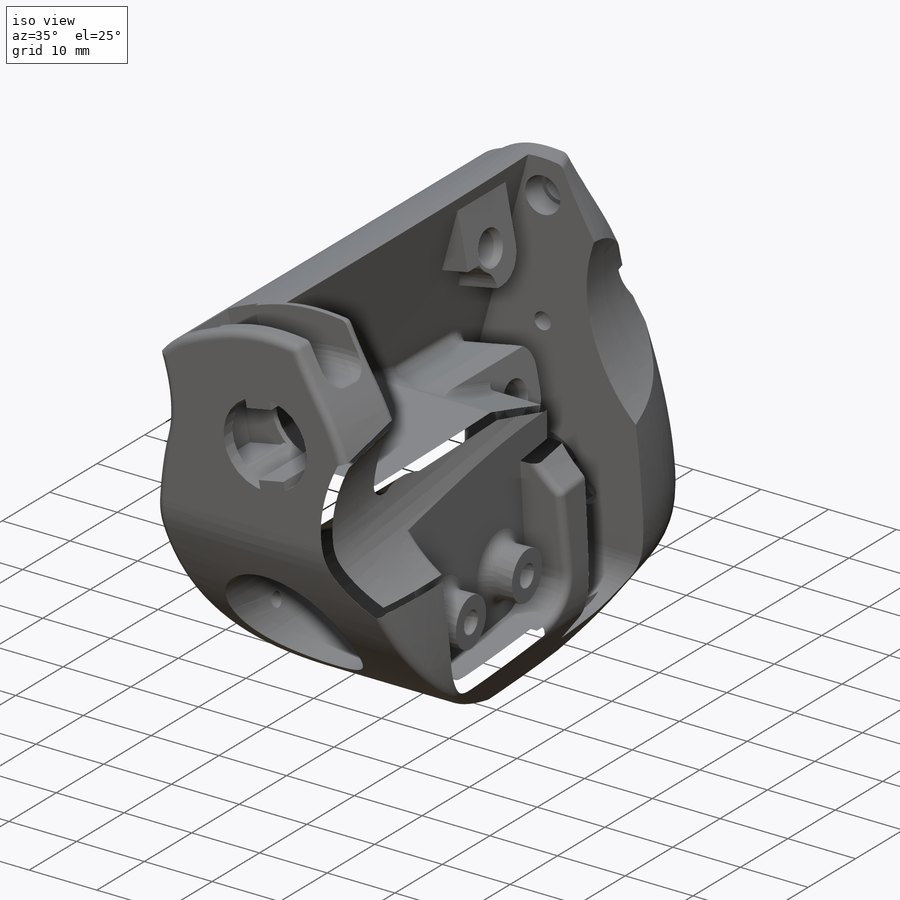
[diagram: iso view]
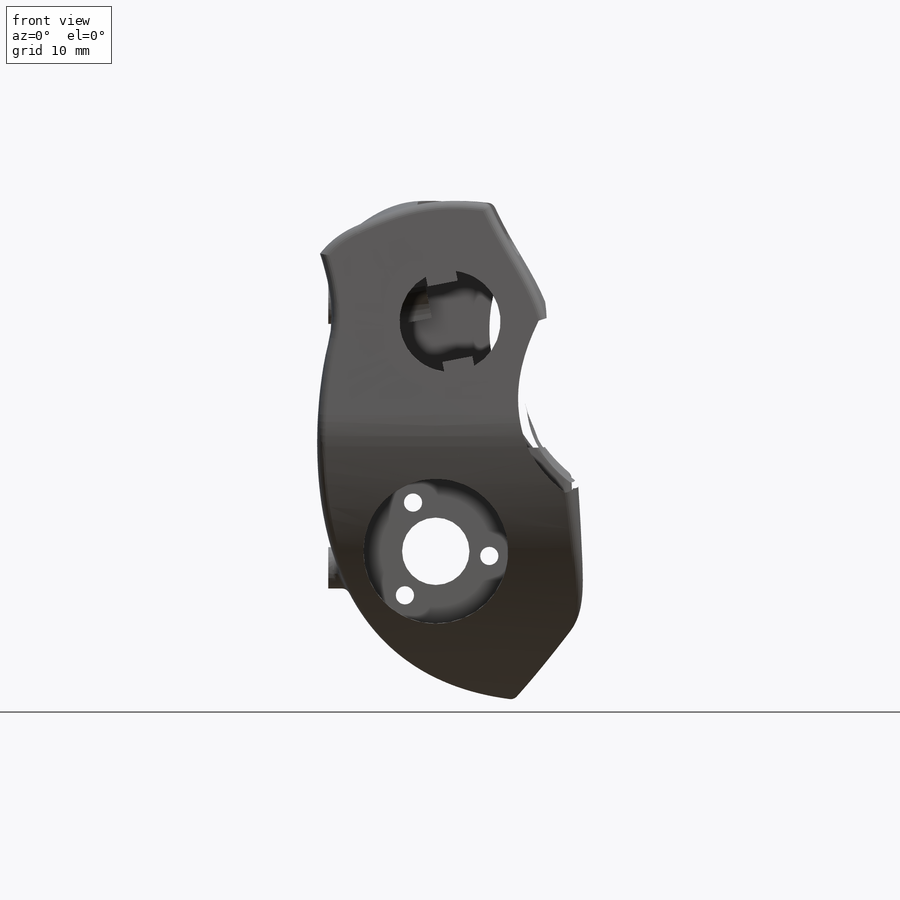
[diagram: front view]
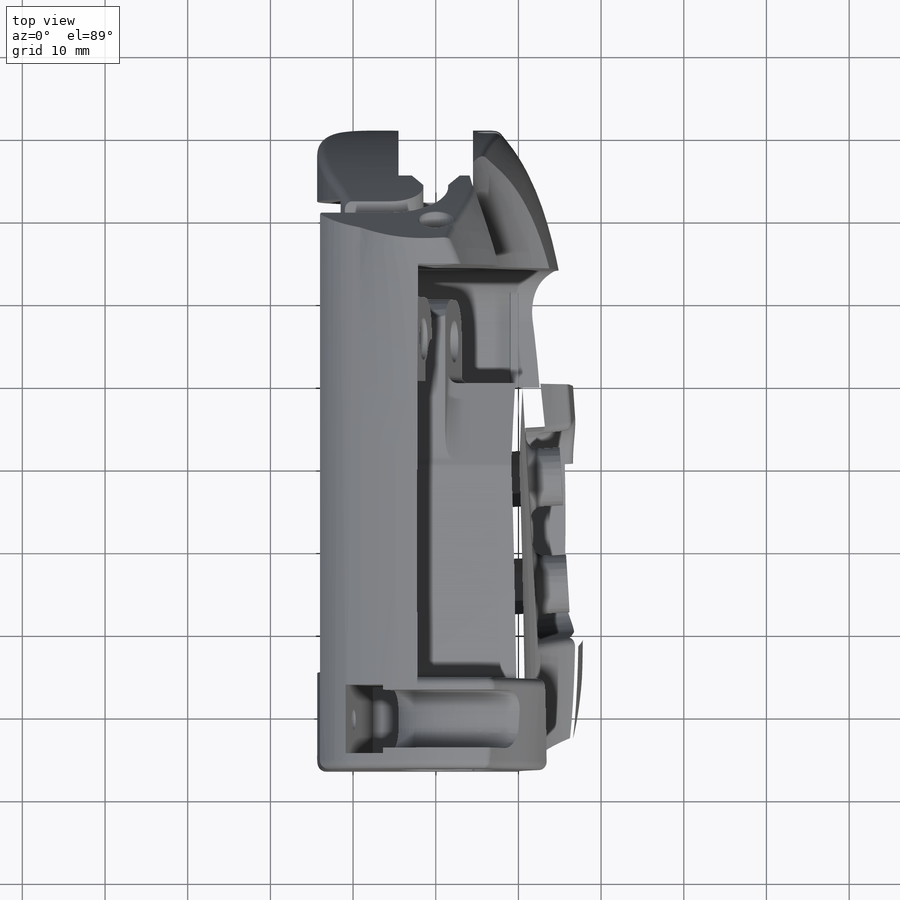
[diagram: top view]
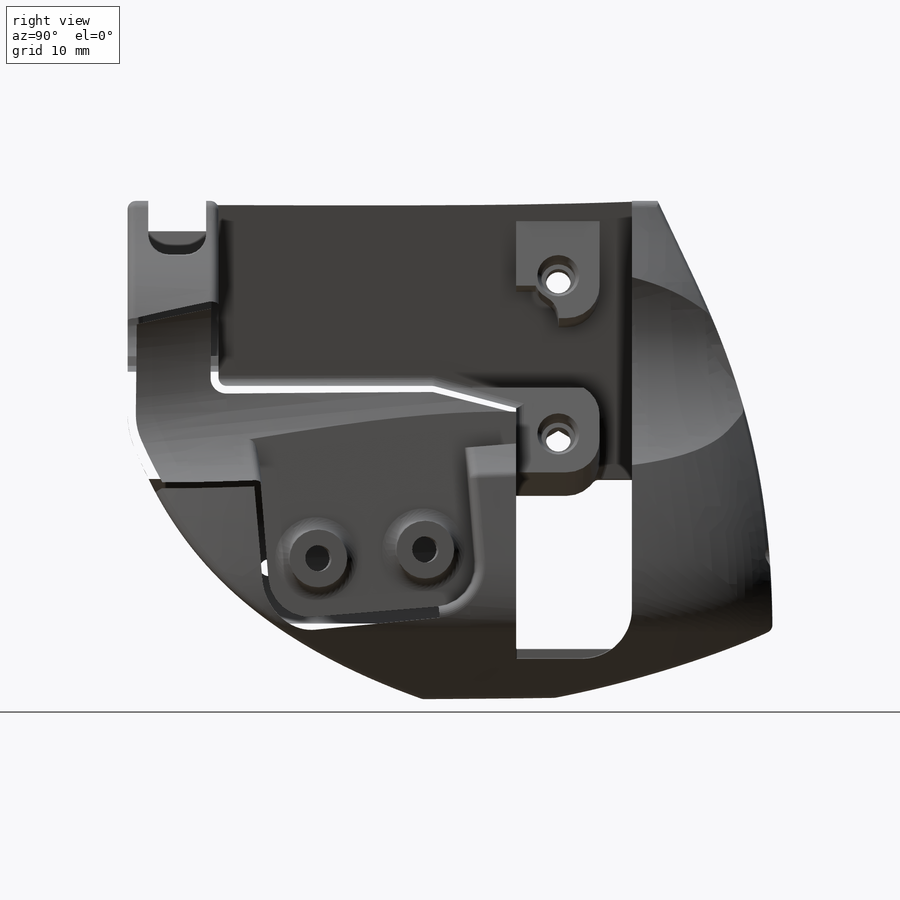
[diagram: right view]
SOLIDWORKS PART (.sldprt)
format: sldprt  version: not decoded by parser v0  size: 5,524,992 bytes
history: native  units: mm
features: sketch x56, cut_extrude x23, plane x21, chamfer x21, extrude x9, cut_revolve x5, fillet x4, delete_body x2, material x1, surface_op x1, pattern_circular x1, hole x1, move_body x1 + 2 further entries (+9 scaffold rows collapsed; 1 parser-record rows omitted)
feature tree (158):
  scaffold x9  (default folders/planes/origin — collapsed)
  material  "Material <nicht festgelegt>"
  plane  "Vorne"
  plane  "Oben"
  plane  "Rechts"
  sketch  "Skizze1"  dims[D1=33.0mm D2=15.0mm]
  extrude  "Aufsatz-Linear austragen1"  Depth=8mm
  sketch  "Skizze2"  dims[D1=13.0mm]
  plane  "Ebene1"  Offset=14mm
  sketch  "Skizze3"  dims[c1.D1=12.5mm c1.D2=~7.550646mm c1.D3=8.0mm c2.D2=8.0mm c2.D3=1.1mm c2.D4=6.0mm c2.D5=20.0mm]
  plane  "Ebene2"  Offset=36mm
  sketch  "Skizze4"  dims[c1.D3=22.0mm c1.D4=12.2mm c1.D1=1.7mm c1.D2=27.8mm c2.D3=1.7mm c2.D5=1.7mm c3.D5=~10.511736deg c3.D6=4.2mm c3.D7=2.5mm c3.D8=3.1mm c3.D9=5.3mm c3.D10=12.0mm]
  plane  "Ebene3"  Offset=5.1mm
  sketch  "Skizze6"  dims[c1.D1=~36.674242mm c2.D1=~78.996459deg c2.D2=~6.871308mm c3.D2=90.0deg c3.D3=36.0mm c3.D4=4.0mm c3.D5=5.0mm c3.D6=1.0mm c3.D7=26.0mm c3.D8=2.0mm c3.D9=5.0mm]
  sketch  "Skizze11"  dims[c1.D1=7.0mm c1.D2=3.5mm c1.D3=14.0mm c1.D4=5.5mm c2.D3=43.0mm c2.D4=42.0mm c2.D5=~58.694122mm c3.D4=42.0mm c3.D5=28.0mm c3.D6=8.0mm c3.D7=28.0mm c4.D6=30.0mm c4.D7=10.0mm c4.D8=8.0mm c4.D9=19.0mm c4.D10=20.1mm c4.D11=~33.729395mm]
  sketch  "Skizze10"  dims[D1=18.0mm D2=17.0mm D3=46.0mm D4=17.0mm]
  sketch  "Skizze12"  dims[c1.D1=~71.391078mm c2.D1=15.0deg c2.D2=11.5mm c2.D3=41.0mm c2.D4=3.0mm c2.D5=42.0mm c3.D2=20.0mm c3.D3=1.0mm c4.D2=20.0mm c4.D3=1.0mm]
  extrude  "Aufsatz-Linear austragen7"  Depth=46mm
  plane  "Ebene4"  Offset=28mm
  sketch  "Skizze14"  dims[D1=12.0mm D2=14.0mm D3=46.0mm]
  sketch  "Skizze15"  dims[c1.D3=~21.268999mm c1.D4=~9.231116mm c1.D1=6.0mm c1.D2=42.0mm c2.D3=10.0mm c2.D4=15.0mm]
  sketch  "Skizze16"
  surface_op  "Oberfläche-Linear austragen1"
  sketch  "Skizze15<12>"
  sketch  "Skizze17"  dims[c1.D1=22.0mm c2.D1=40.0mm c2.D2=50.0mm]
  sketch  "Skizze18"  dims[D1=19.0mm D2=3.0deg]
  plane  "Ebene5"  Offset=45mm
  sketch  "Skizze19"  dims[c1.D1=4.5mm c1.D2=9.0mm c1.D3=22.0mm c1.D4=12.0mm c2.D1=25.0mm c2.D2=20.0mm]
  plane  "Ebene6"  Offset=8mm
  sketch  "Skizze20"  dims[D1=17.5mm]
  "Oberflächenausfüllung2"
  "Oberflächenausfüllung3"
  delete_body  "Körper-Löschen2"
  sketch  "Skizze21"  dims[c1.D2=13.0mm c1.D1=~71.36895mm c2.D1=15.0deg c2.D3=15.0mm c2.D4=~71.36895mm c3.D4=10.6deg c3.D5=2.0mm c3.D6=60.0mm c3.D7=20.0mm c4.D4=32.0mm]
  cut_extrude  "Schnitt-Linear austragen1"  [1 undecoded]
  sketch  "Skizze23"  dims[c1.D1=20.0mm c1.D2=~32.879159mm c2.D2=~2.210351deg c3.D2=30.0mm c3.D3=30.0mm c3.D4=30.0mm]
  cut_extrude  "Schnitt-Linear austragen2"  [1 undecoded]
  sketch  "Skizze24"  dims[c1.D1=2.5mm c1.D2=2.2mm c1.D3=15.1mm c1.D4=12.5mm c1.D5=10.0mm c1.D6=8.15mm c2.D1=9.5mm c2.D3=10.5mm c2.D7=2.0mm]
  cut_revolve  "Schnitt-Rotation1"  Angle=360deg
  sketch  "Skizze25"  dims[c1.D1=12.25mm c1.D7=12.1mm c1.D2=1.72mm c1.D3=27.8mm c1.D4=27.8mm c2.D4=11.0deg c2.D5=4.6mm c2.D6=3.7mm c2.D7=12.1mm c3.D5=9.3mm c3.D2=1.72mm]
  delete_body  "Schnitt-Linear austragen3"
  sketch  "Skizze26"  dims[c1.D1=~71.36895mm c2.D1=11.0deg c2.D2=5.0mm c2.D3=10.0mm c2.D4=11.0mm c3.D3=11.0mm c3.D4=11.0mm c3.D5=8.0mm c4.D3=28.2mm]
  extrude  "Aufsatz-Linear austragen8"  Depth=5mm
  chamfer  "Fase3"  Distance=3mm Angle=11deg
  fillet  "Verrundung1"  Radius=4mm
  sketch  "Skizze27"  dims[D1=8.0mm D2=17.0mm D3=9.0mm]
  cut_extrude  "Schnitt-Linear austragen4"  Depth=4.5mm
  sketch  "Skizze28"  dims[D2=2.46mm D1=20.63mm]
  cut_extrude  "Schnitt-Linear austragen5"  [1 undecoded]
  sketch  "Skizze29"  dims[D1=3.0mm D2=19.5mm D3=33.0mm]
  cut_extrude  "Schnitt-Linear austragen6"  [1 undecoded]
  sketch  "Skizze30"  dims[c1.D1=14.0mm c1.D2=36.0mm c1.D3=24.0mm c2.D1=14.0mm c2.D2=36.0mm c2.D3=25.0mm]
  extrude  "Aufsatz-Linear austragen9"  Depth=9mm
  plane  "Ebene7"  Offset=4mm
  sketch  "Skizze33"  dims[c1.D1=~71.36895mm c2.D1=11.0deg c2.D2=4.0mm c2.D3=5.6mm c2.D4=4.8mm c2.D5=4.1mm c2.D6=20.0mm c3.D3=10.3mm]
  cut_extrude  "Schnitt-Linear austragen7"  Depth=8.3mm
  chamfer  "Verrundung2"  Distance=0.5mm
  sketch  "Skizze34"  dims[D1=8.0mm D2=3.5mm D3=35.0mm D4=20.0mm D5=8.0mm]
  cut_extrude  "Schnitt-Linear austragen8"  Depth=7mm
  chamfer  "Verrundung3"  Distance=2.5mm
  sketch  "Skizze36"  dims[D2=2.46mm D1=12.1mm]
  cut_extrude  "Schnitt-Linear austragen9"  [1 undecoded]
  sketch  "Skizze37"  dims[D1=21.0mm]
  cut_extrude  "Schnitt-Linear austragen10"  [1 undecoded]
  sketch  "Skizze40"  dims[D1=4.15mm]
  cut_extrude  "Schnitt-Linear austragen12"  Depth=3.5mm
  plane  "Ebene8"  Offset=2mm
  sketch  "Skizze41"  dims[D1=5.2mm D2=5.2mm]
  cut_extrude  "Schnitt-Linear austragen13"  [1 undecoded]
  fillet  "Fläche verschieben5"  Radius=0.5mm
  fillet  "Fläche verschieben6"  Radius=2mm
  fillet  "Fläche verschieben7"  Radius=1mm
  sketch  "Skizze50"  dims[D1=5.0mm]
  extrude  "Aufsatz-Linear austragen11"  [1 undecoded]
  sketch  "Skizze38"  dims[D1=37.4mm D2=4.0mm D3=5.2mm D4=3.5mm D5=7.0mm]
  cut_extrude  "Schnitt-Rotation2"  [1 undecoded]
  chamfer  "Verrundung4"  Distance=0.2mm
  chamfer  "Verrundung6"  Distance=15mm
  chamfer  "Verrundung7"  Distance=10mm
  chamfer  "Verrundung9"  Distance=1mm
  chamfer  "Verrundung11"  Distance=6mm
  chamfer  "Verrundung12"  Distance=1mm
  sketch  "Skizze42"  dims[D3=4.0mm D1=3.0mm D2=8.0mm D4=15.0mm]
  cut_extrude  "Schnitt-Linear austragen14"  [1 undecoded]
  chamfer  "Verrundung13"  Distance=1mm
  sketch  "Skizze43"  dims[c1.D1=13.0mm c1.D3=2.2mm c1.D2=~52.272938mm c2.D2=5.0deg]
  cut_extrude  "Schnitt-Linear austragen15"  [1 undecoded]
  cut_revolve  "Fase2"  Angle=45deg
  pattern_circular  "Kreismuster2"  Count=3 Angle=360deg
  sketch  "Skizze44"  dims[D1=20.0mm D2=1.5mm]
  cut_extrude  "Schnitt-Linear austragen16"  [1 undecoded]
  sketch  "Skizze45"  dims[D1=3.0mm D2=3.0mm D3=4.0mm]
  cut_extrude  "Schnitt-Linear austragen17"  [1 undecoded]
  chamfer  "Verrundung14"  Distance=5mm
  chamfer  "Verrundung18"  Distance=1mm
  plane  "Ebene9"  Offset=10mm
  sketch  "Skizze51"  dims[D1=1.2mm]
  extrude  "Aufsatz-Linear austragen12"  Depth=1mm
  chamfer  "Verrundung19"  Distance=0.1mm
  sketch  "Skizze52"  dims[D1=18.0mm D2=10.0mm]
  cut_extrude  "Schnitt-Linear austragen18"  [1 undecoded]
  plane  "Ebene10"  Offset=21.5mm
  sketch  "Skizze46"  dims[c1.D1=2.0mm c1.D2=2.0mm c2.D1=5.0mm c2.D3=~27.364699mm c2.D4=47.0mm c2.D2=47.0mm c3.D3=32.0mm c3.D4=30.0mm c3.D5=30.0mm]
  sketch  "Skizze56"  dims[c1.D1=47.0mm c2.D1=270.0deg c3.D1=42.0mm c3.D2=57.0mm c3.D3=5.0mm c3.D4=5.0mm]
  cut_extrude  "Schnitt-Linear austragen20"  [1 undecoded]
  cut_revolve  "Fase4"  Angle=15deg
  chamfer  "Verrundung22"  Distance=0.2mm
  chamfer  "Verrundung23"  Distance=1mm
  extrude  "Aufsatz-Linear austragen15"  Depth=1.5mm
  extrude  "Aufsatz-Linear austragen16"  [1 undecoded]
  sketch  "Skizze46<6>"  dims[D1=1.5mm]
  chamfer  "Verrundung28"  Distance=1mm
  hole  "Ø2.05 (2.05) Durchmesser Bohrung1"  Diameter=2.013mm Depth=5mm
  sketch  "Skizze60"
  sketch  "Skizze59"  dims[hole-wizard template sketch: 46 standard entries collapsed; hole parameters kept: c15.Bohrerdurchmesser=2.013mm c15.Bohrungstiefe=5.0mm c15.D3=~14.816244mm c15.Spitzenwinkel=118.0deg]
  plane  "Ebene11"  Offset=10mm
  plane  "Ebene12"  Offset=32mm
  sketch  "Skizze62"  dims[c1.D3=39.0mm c1.D1=23.0mm c1.D2=18.0mm c2.D1=35.0mm c2.D2=~52.272938mm c3.D2=50.0deg]
  sketch  "Skizze61"  dims[D1=30.5mm D2=27.5mm D3=20.0mm]
  sketch  "3D-Skizze1"  dims[D1=38.5mm]
  plane  "Ebene15"  Offset=2.5mm
  plane  "Ebene16"
  sketch  "Skizze67"  dims[D1=14.0mm D2=1.0mm D3=30.0mm D4=15.0mm]
  cut_extrude  "Schnitt-Linear austragen22"  Depth=25mm
  chamfer  "Verrundung29"  Distance=5mm
  plane  "Ebene17"
  plane  "Ebene18"
  sketch  "Skizze68"  dims[c1.D1=11.0mm c1.D2=~11.832207mm c2.D2=20.0deg c2.D3=10.0mm c2.D4=17.0mm c2.D1=~14.866069mm c3.D1=40.0deg c3.D3=15.5mm c3.D5=17.0mm c3.D6=~17.386665mm c4.D6=60.0deg]
  sketch  "Skizze69"  dims[c1.D1=~7.771096mm c2.D1=35.0deg c2.D2=20.0mm c2.D3=~7.771096mm c3.D3=20.0deg c3.D4=21.0mm c3.D5=~7.771096mm c4.D5=70.0deg c4.D6=21.0mm]
  plane  "Ebene20"
  sketch  "3D-Skizze2"
  chamfer  "Verrundung32"  Distance=1mm
  sketch  "Skizze70"  dims[D1=3.2mm D2=6.0mm D3=13.0mm D4=23.0mm D5=6.0mm]
  chamfer  "Verrundung33"  Distance=1mm
  cut_extrude  "Schnitt-Linear austragen24"  [1 undecoded]
  sketch  "Skizze71"  dims[D1=7.0mm]
  extrude  "Aufsatz-Linear austragen17"  Depth=4mm
  chamfer  "Verrundung35"  Distance=1.5mm
  plane  "Ebene21"  Offset=4.5mm
  sketch  "Skizze73"  dims[D1=5.8mm]
  cut_extrude  "Schnitt-Linear austragen25"  [1 undecoded]
  sketch  "Skizze74"  dims[D1=3.0mm]
  cut_extrude  "Schnitt-Linear austragen26"  [1 undecoded]
  cut_revolve  "Fase5"  Angle=25deg
  cut_revolve  "Fase6"  Angle=25deg
  chamfer  "Verrundung36"  Distance=1mm
  sketch  "Skizze75"  dims[D1=13.0mm D2=3.0mm D3=6.0mm]
  cut_extrude  "Schnitt-Linear austragen27"  [1 undecoded]
  parser-record x1  (decoder bookkeeping rows leaked as tree rows — omitted from the tree; the rows remain in map.json)
  move_body  "Körper-Verschieben/Kopieren1"
decode coverage: 96 of 124 modeling features carry decoded parameters; 2 rows unclassified (native names shown)
note: ~ marks probable driven/reference dimensions
note: 20 parameter values undecoded
summary: no parameter record found for 20 features
note: suppression state not decoded; provenance and decode notes live in map.json
